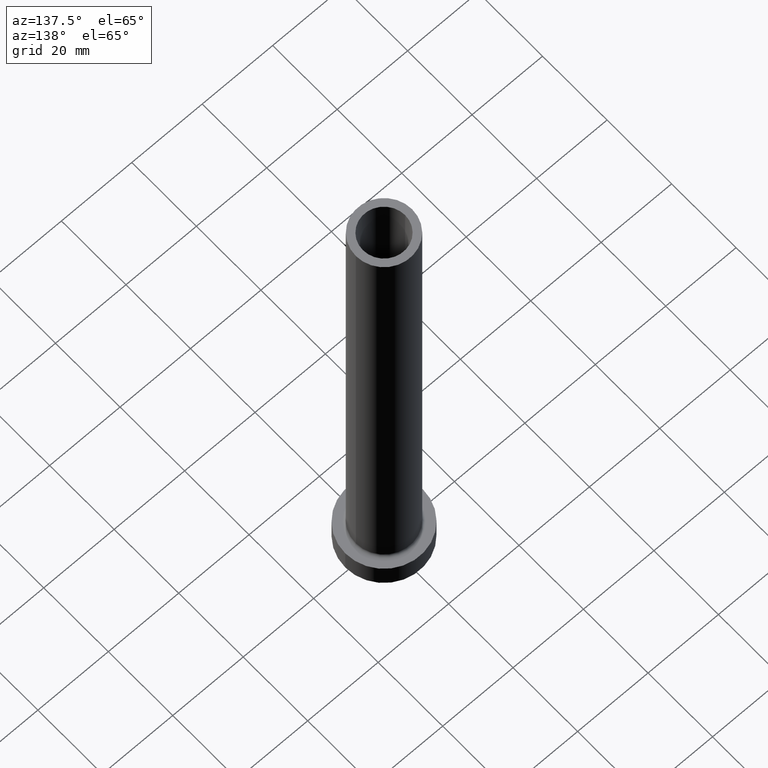
[diagram: clean part render]
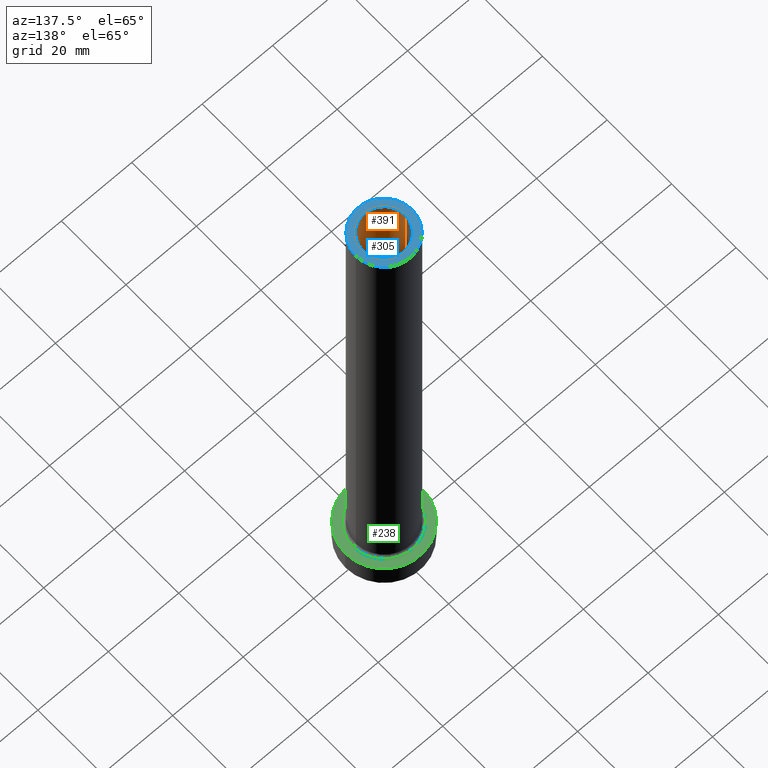
[diagram: same view with three faces highlighted in distinct colors, each labeled with its STEP entity id]
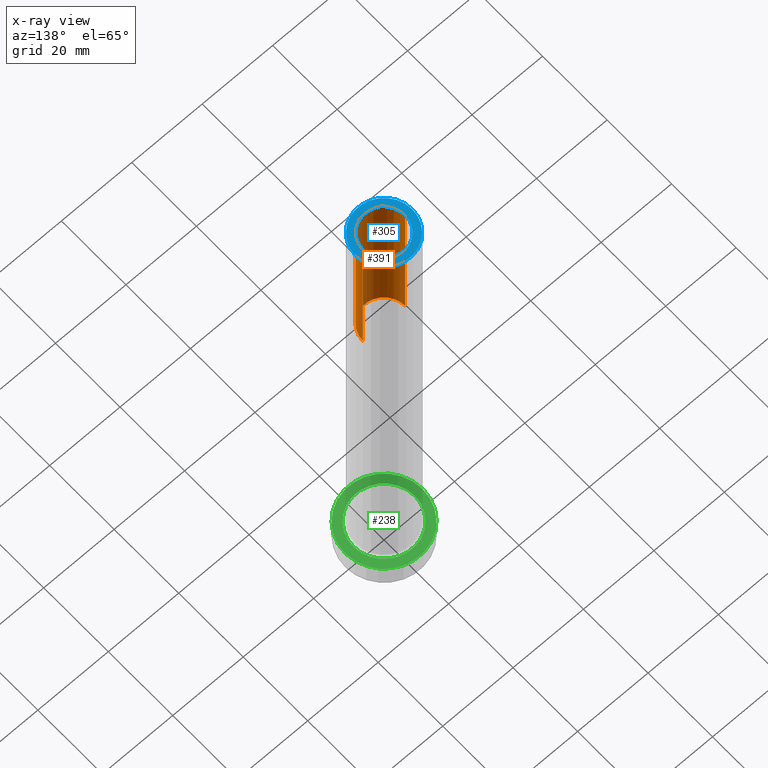
[diagram: x-ray of the same camera — body ghosted, the three highlighted faces saturated]
A machine part, auxiliary view with three faces highlighted in distinct colors.
The next image is the same camera in x-ray (body ghosted, the three faces saturated) — at least one of them is partly hidden behind the body in this view.
Their STEP definitions:

[orange] entity #391 — the highlighted cylindrical surface (edge-blend (fillet) strip) has radius 6 mm, axis along (0, 0, -1).
#2 = EDGE_CURVE ( 'NONE', #399, #138, #156, .T. ) ;
#12 = CARTESIAN_POINT ( 'NONE',  ( -6.000000000000000888, 0.000000000000000000, 105.0000000000000000 ) ) ;
#14 = ORIENTED_EDGE ( 'NONE', *, *, #2, .F. ) ;
#15 = CARTESIAN_POINT ( 'NONE',  ( 0.000000000000000000, 0.000000000000000000, 150.0000000000000000 ) ) ;
#22 = DIRECTION ( 'NONE',  ( -1.000000000000000000, 0.000000000000000000, 0.000000000000000000 ) ) ;
#23 = DIRECTION ( 'NONE',  ( 1.000000000000000000, 0.000000000000000000, 0.000000000000000000 ) ) ;
#43 = LINE ( 'NONE', #291, #348 ) ;
#46 = DIRECTION ( 'NONE',  ( 1.000000000000000000, 0.000000000000000000, 0.000000000000000000 ) ) ;
#54 = FACE_OUTER_BOUND ( 'NONE', #212, .T. ) ;
#56 = CIRCLE ( 'NONE', #113, 6.000000000000000888 ) ;
#67 = EDGE_CURVE ( 'NONE', #133, #314, #43, .T. ) ;
#71 = ORIENTED_EDGE ( 'NONE', *, *, #151, .T. ) ;
#113 = AXIS2_PLACEMENT_3D ( 'NONE', #15, #321, #46 ) ;
#133 = VERTEX_POINT ( 'NONE', #323 ) ;
#138 = VERTEX_POINT ( 'NONE', #12 ) ;
#151 = EDGE_CURVE ( 'NONE', #399, #133, #56, .T. ) ;
#156 = LINE ( 'NONE', #403, #289 ) ;
#160 = CARTESIAN_POINT ( 'NONE',  ( -6.000000000000000888, 0.000000000000000000, 150.0000000000000000 ) ) ;
#172 = ORIENTED_EDGE ( 'NONE', *, *, #456, .F. ) ;
#181 = DIRECTION ( 'NONE',  ( 0.000000000000000000, 0.000000000000000000, -1.000000000000000000 ) ) ;
#195 = DIRECTION ( 'NONE',  ( 0.000000000000000000, 0.000000000000000000, -1.000000000000000000 ) ) ;
#212 = EDGE_LOOP ( 'NONE', ( #71, #427, #172, #14 ) ) ;
#249 = AXIS2_PLACEMENT_3D ( 'NONE', #375, #265, #23 ) ;
#263 = DIRECTION ( 'NONE',  ( 0.000000000000000000, 0.000000000000000000, -1.000000000000000000 ) ) ;
#265 = DIRECTION ( 'NONE',  ( 0.000000000000000000, 0.000000000000000000, 1.000000000000000000 ) ) ;
#289 = VECTOR ( 'NONE', #181, 1000.000000000000000 ) ;
#291 = CARTESIAN_POINT ( 'NONE',  ( 6.000000000000000888, 7.347880794884119736E-16, 150.0000000000000000 ) ) ;
#314 = VERTEX_POINT ( 'NONE', #378 ) ;
#321 = DIRECTION ( 'NONE',  ( 0.000000000000000000, 0.000000000000000000, 1.000000000000000000 ) ) ;
#323 = CARTESIAN_POINT ( 'NONE',  ( 6.000000000000000888, 7.347880794884119736E-16, 150.0000000000000000 ) ) ;
#348 = VECTOR ( 'NONE', #263, 1000.000000000000000 ) ;
#360 = CIRCLE ( 'NONE', #249, 6.000000000000000888 ) ;
#368 = CYLINDRICAL_SURFACE ( 'NONE', #376, 6.000000000000000888 ) ;
#375 = CARTESIAN_POINT ( 'NONE',  ( 0.000000000000000000, 0.000000000000000000, 105.0000000000000000 ) ) ;
#376 = AXIS2_PLACEMENT_3D ( 'NONE', #412, #195, #22 ) ;
#378 = CARTESIAN_POINT ( 'NONE',  ( 6.000000000000000888, 7.347880794884119736E-16, 105.0000000000000000 ) ) ;
#391 = ADVANCED_FACE ( 'NONE', ( #54 ), #368, .F. ) ;
#399 = VERTEX_POINT ( 'NONE', #160 ) ;
#403 = CARTESIAN_POINT ( 'NONE',  ( -6.000000000000000888, 0.000000000000000000, 150.0000000000000000 ) ) ;
#412 = CARTESIAN_POINT ( 'NONE',  ( 0.000000000000000000, 0.000000000000000000, 150.0000000000000000 ) ) ;
#427 = ORIENTED_EDGE ( 'NONE', *, *, #67, .T. ) ;
#456 = EDGE_CURVE ( 'NONE', #138, #314, #360, .T. ) ;

[blue] entity #305 — the highlighted planar face has unit normal (0, 0, 1).
#15 = CARTESIAN_POINT ( 'NONE',  ( 0.000000000000000000, 0.000000000000000000, 150.0000000000000000 ) ) ;
#20 = AXIS2_PLACEMENT_3D ( 'NONE', #76, #219, #253 ) ;
#37 = DIRECTION ( 'NONE',  ( 0.000000000000000000, 0.000000000000000000, 1.000000000000000000 ) ) ;
#38 = ORIENTED_EDGE ( 'NONE', *, *, #151, .F. ) ;
#40 = VERTEX_POINT ( 'NONE', #72 ) ;
#46 = DIRECTION ( 'NONE',  ( 1.000000000000000000, 0.000000000000000000, 0.000000000000000000 ) ) ;
#56 = CIRCLE ( 'NONE', #113, 6.000000000000000888 ) ;
#58 = CARTESIAN_POINT ( 'NONE',  ( 0.000000000000000000, 0.000000000000000000, 150.0000000000000000 ) ) ;
#64 = VERTEX_POINT ( 'NONE', #148 ) ;
#70 = AXIS2_PLACEMENT_3D ( 'NONE', #433, #37, #402 ) ;
#72 = CARTESIAN_POINT ( 'NONE',  ( 8.000000000000000000, 9.797174393178825657E-16, 150.0000000000000000 ) ) ;
#76 = CARTESIAN_POINT ( 'NONE',  ( 0.000000000000000000, 0.000000000000000000, 150.0000000000000000 ) ) ;
#96 = ORIENTED_EDGE ( 'NONE', *, *, #198, .T. ) ;
#104 = ORIENTED_EDGE ( 'NONE', *, *, #328, .T. ) ;
#113 = AXIS2_PLACEMENT_3D ( 'NONE', #15, #321, #46 ) ;
#131 = EDGE_CURVE ( 'NONE', #133, #399, #184, .T. ) ;
#133 = VERTEX_POINT ( 'NONE', #323 ) ;
#148 = CARTESIAN_POINT ( 'NONE',  ( -8.000000000000000000, 0.000000000000000000, 150.0000000000000000 ) ) ;
#151 = EDGE_CURVE ( 'NONE', #399, #133, #56, .T. ) ;
#160 = CARTESIAN_POINT ( 'NONE',  ( -6.000000000000000888, 0.000000000000000000, 150.0000000000000000 ) ) ;
#163 = CARTESIAN_POINT ( 'NONE',  ( 0.000000000000000000, 0.000000000000000000, 150.0000000000000000 ) ) ;
#170 = DIRECTION ( 'NONE',  ( 1.000000000000000000, 0.000000000000000000, 0.000000000000000000 ) ) ;
#184 = CIRCLE ( 'NONE', #365, 6.000000000000000888 ) ;
#198 = EDGE_CURVE ( 'NONE', #40, #64, #398, .T. ) ;
#209 = FACE_OUTER_BOUND ( 'NONE', #245, .T. ) ;
#219 = DIRECTION ( 'NONE',  ( 0.000000000000000000, 0.000000000000000000, 1.000000000000000000 ) ) ;
#233 = AXIS2_PLACEMENT_3D ( 'NONE', #163, #448, #296 ) ;
#245 = EDGE_LOOP ( 'NONE', ( #104, #96 ) ) ;
#253 = DIRECTION ( 'NONE',  ( 1.000000000000000000, 0.000000000000000000, -0.000000000000000000 ) ) ;
#258 = CIRCLE ( 'NONE', #233, 8.000000000000000000 ) ;
#280 = ORIENTED_EDGE ( 'NONE', *, *, #131, .F. ) ;
#296 = DIRECTION ( 'NONE',  ( 1.000000000000000000, 0.000000000000000000, 0.000000000000000000 ) ) ;
#305 = ADVANCED_FACE ( 'NONE', ( #440, #209 ), #405, .T. ) ;
#321 = DIRECTION ( 'NONE',  ( 0.000000000000000000, 0.000000000000000000, 1.000000000000000000 ) ) ;
#323 = CARTESIAN_POINT ( 'NONE',  ( 6.000000000000000888, 7.347880794884119736E-16, 150.0000000000000000 ) ) ;
#328 = EDGE_CURVE ( 'NONE', #64, #40, #258, .T. ) ;
#349 = DIRECTION ( 'NONE',  ( 0.000000000000000000, 0.000000000000000000, 1.000000000000000000 ) ) ;
#365 = AXIS2_PLACEMENT_3D ( 'NONE', #58, #349, #170 ) ;
#398 = CIRCLE ( 'NONE', #70, 8.000000000000000000 ) ;
#399 = VERTEX_POINT ( 'NONE', #160 ) ;
#402 = DIRECTION ( 'NONE',  ( 1.000000000000000000, 0.000000000000000000, 0.000000000000000000 ) ) ;
#405 = PLANE ( 'NONE',  #20 ) ;
#433 = CARTESIAN_POINT ( 'NONE',  ( 0.000000000000000000, 0.000000000000000000, 150.0000000000000000 ) ) ;
#440 = FACE_BOUND ( 'NONE', #458, .T. ) ;
#448 = DIRECTION ( 'NONE',  ( 0.000000000000000000, 0.000000000000000000, 1.000000000000000000 ) ) ;
#458 = EDGE_LOOP ( 'NONE', ( #38, #280 ) ) ;

[green] entity #238 — the highlighted planar face has unit normal (0, 0, 1).
#24 = EDGE_CURVE ( 'NONE', #144, #366, #30, .T. ) ;
#30 = CIRCLE ( 'NONE', #189, 11.00000000000000000 ) ;
#36 = ORIENTED_EDGE ( 'NONE', *, *, #140, .T. ) ;
#62 = ORIENTED_EDGE ( 'NONE', *, *, #383, .T. ) ;
#74 = FACE_OUTER_BOUND ( 'NONE', #125, .T. ) ;
#84 = CARTESIAN_POINT ( 'NONE',  ( 0.000000000000000000, 0.000000000000000000, 7.000000000000000000 ) ) ;
#112 = CARTESIAN_POINT ( 'NONE',  ( -11.00000000000000000, 0.000000000000000000, 7.000000000000000000 ) ) ;
#125 = EDGE_LOOP ( 'NONE', ( #62, #288 ) ) ;
#129 = CIRCLE ( 'NONE', #400, 8.699999999999999289 ) ;
#140 = EDGE_CURVE ( 'NONE', #146, #356, #197, .T. ) ;
#144 = VERTEX_POINT ( 'NONE', #439 ) ;
#145 = PLANE ( 'NONE',  #333 ) ;
#146 = VERTEX_POINT ( 'NONE', #318 ) ;
#152 = DIRECTION ( 'NONE',  ( 1.000000000000000000, 0.000000000000000000, 0.000000000000000000 ) ) ;
#157 = DIRECTION ( 'NONE',  ( 1.000000000000000000, 0.000000000000000000, 0.000000000000000000 ) ) ;
#177 = DIRECTION ( 'NONE',  ( -0.000000000000000000, -0.000000000000000000, -1.000000000000000000 ) ) ;
#188 = CARTESIAN_POINT ( 'NONE',  ( 0.000000000000000000, 0.000000000000000000, 7.000000000000000000 ) ) ;
#189 = AXIS2_PLACEMENT_3D ( 'NONE', #188, #445, #152 ) ;
#197 = CIRCLE ( 'NONE', #255, 8.699999999999999289 ) ;
#218 = DIRECTION ( 'NONE',  ( 1.000000000000000000, 0.000000000000000000, -0.000000000000000000 ) ) ;
#221 = DIRECTION ( 'NONE',  ( 1.000000000000000000, 0.000000000000000000, 0.000000000000000000 ) ) ;
#238 = ADVANCED_FACE ( 'NONE', ( #246, #74 ), #145, .T. ) ;
#244 = DIRECTION ( 'NONE',  ( 1.000000000000000000, 0.000000000000000000, 0.000000000000000000 ) ) ;
#246 = FACE_BOUND ( 'NONE', #247, .T. ) ;
#247 = EDGE_LOOP ( 'NONE', ( #36, #350 ) ) ;
#255 = AXIS2_PLACEMENT_3D ( 'NONE', #364, #177, #244 ) ;
#256 = DIRECTION ( 'NONE',  ( -0.000000000000000000, -0.000000000000000000, -1.000000000000000000 ) ) ;
#288 = ORIENTED_EDGE ( 'NONE', *, *, #24, .T. ) ;
#318 = CARTESIAN_POINT ( 'NONE',  ( 8.699999999999999289, 0.000000000000000000, 7.000000000000006217 ) ) ;
#325 = DIRECTION ( 'NONE',  ( 0.000000000000000000, 0.000000000000000000, 1.000000000000000000 ) ) ;
#333 = AXIS2_PLACEMENT_3D ( 'NONE', #407, #325, #218 ) ;
#335 = DIRECTION ( 'NONE',  ( 0.000000000000000000, 0.000000000000000000, 1.000000000000000000 ) ) ;
#337 = CARTESIAN_POINT ( 'NONE',  ( -8.699999999999999289, 1.065442715258197248E-15, 7.000000000000006217 ) ) ;
#346 = EDGE_CURVE ( 'NONE', #356, #146, #129, .T. ) ;
#350 = ORIENTED_EDGE ( 'NONE', *, *, #346, .T. ) ;
#356 = VERTEX_POINT ( 'NONE', #337 ) ;
#364 = CARTESIAN_POINT ( 'NONE',  ( 0.000000000000000000, 0.000000000000000000, 7.000000000000000000 ) ) ;
#366 = VERTEX_POINT ( 'NONE', #112 ) ;
#383 = EDGE_CURVE ( 'NONE', #366, #144, #430, .T. ) ;
#400 = AXIS2_PLACEMENT_3D ( 'NONE', #84, #256, #157 ) ;
#407 = CARTESIAN_POINT ( 'NONE',  ( 0.000000000000000000, 0.000000000000000000, 7.000000000000000000 ) ) ;
#415 = CARTESIAN_POINT ( 'NONE',  ( 0.000000000000000000, 0.000000000000000000, 7.000000000000000000 ) ) ;
#430 = CIRCLE ( 'NONE', #446, 11.00000000000000000 ) ;
#439 = CARTESIAN_POINT ( 'NONE',  ( 11.00000000000000000, 1.347111479062088405E-15, 7.000000000000000000 ) ) ;
#445 = DIRECTION ( 'NONE',  ( 0.000000000000000000, 0.000000000000000000, 1.000000000000000000 ) ) ;
#446 = AXIS2_PLACEMENT_3D ( 'NONE', #415, #335, #221 ) ;